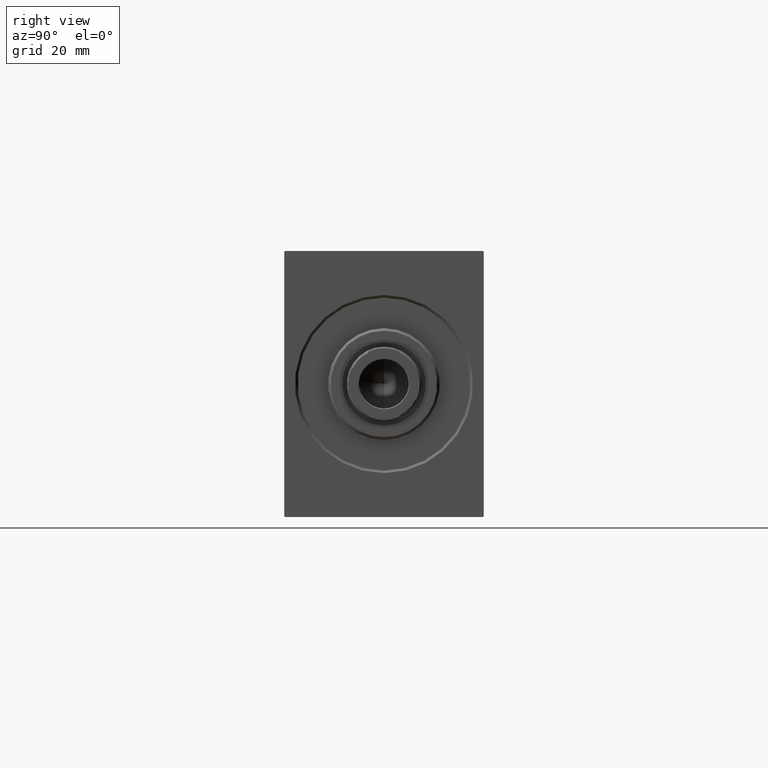
[diagram: clean part render]
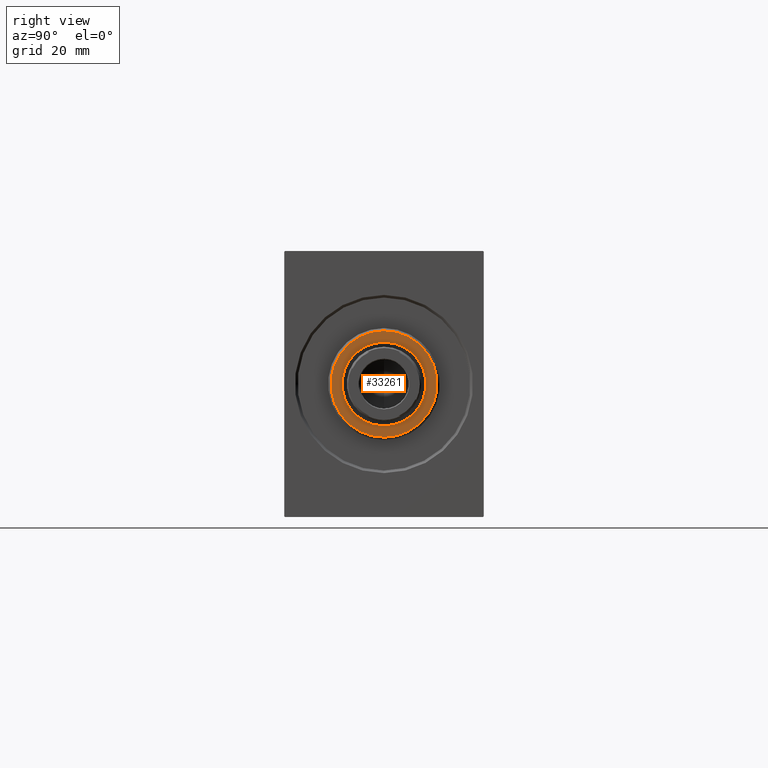
[diagram: same view with one face highlighted and labeled with its STEP entity id]
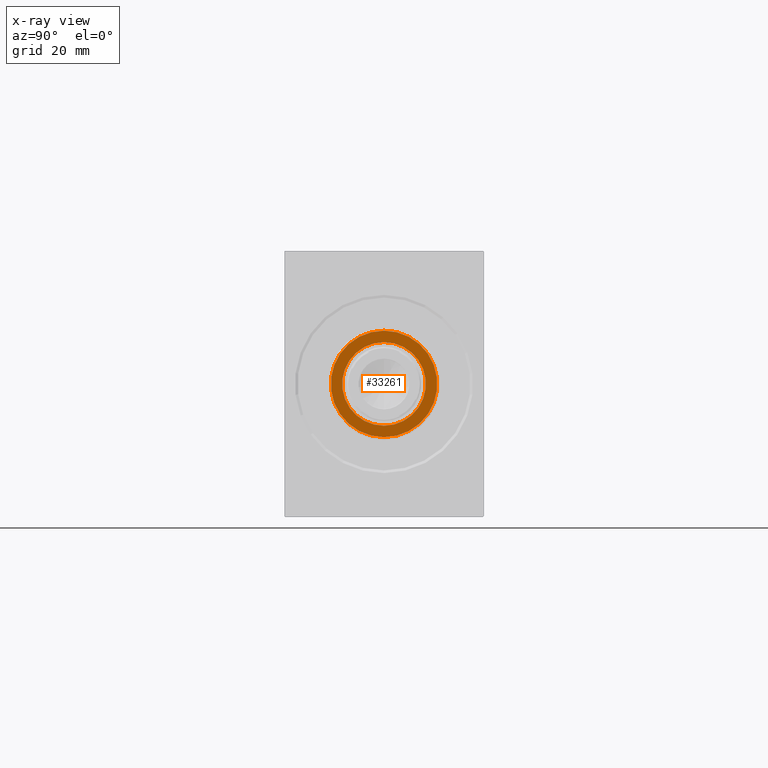
[diagram: x-ray of the same camera — body ghosted, the highlighted face saturated]
A machine part, right view. The second image highlights one B-rep face of the part: STEP entity #33261.
The next image is the same camera in x-ray: the body ghosted, the highlighted face saturated — about 0% of this face is hidden behind the body in this view.
In plain terms, the highlighted planar face has unit normal (1, 0, 0).
Its self-contained STEP definition (entity closure, byte-faithful):
#371 = CARTESIAN_POINT ( 'NONE',  ( 3.000000000000000000, 0.000000000000000000, 0.000000000000000000 ) ) ;
#445 = CARTESIAN_POINT ( 'NONE',  ( 3.000000000000000000, 0.000000000000000000, 0.000000000000000000 ) ) ;
#585 = DIRECTION ( 'NONE',  ( 0.000000000000000000, 0.000000000000000000, -1.000000000000000000 ) ) ;
#808 = CIRCLE ( 'NONE', #17431, 20.00000000000001776 ) ;
#1731 = CIRCLE ( 'NONE', #23149, 20.00000000000001776 ) ;
#4028 = CARTESIAN_POINT ( 'NONE',  ( 3.000000000000000000, 0.000000000000000000, 15.75000000000000000 ) ) ;
#4500 = DIRECTION ( 'NONE',  ( -1.000000000000000000, 0.000000000000000000, -0.000000000000000000 ) ) ;
#4766 = ORIENTED_EDGE ( 'NONE', *, *, #15790, .T. ) ;
#6123 = CARTESIAN_POINT ( 'NONE',  ( 3.000000000000000000, 0.000000000000000000, 0.000000000000000000 ) ) ;
#7647 = CARTESIAN_POINT ( 'NONE',  ( 3.000000000000000000, 0.000000000000000000, 0.000000000000000000 ) ) ;
#8102 = ORIENTED_EDGE ( 'NONE', *, *, #24208, .T. ) ;
#8768 = VERTEX_POINT ( 'NONE', #4028 ) ;
#12156 = CARTESIAN_POINT ( 'NONE',  ( 3.000000000000000000, 1.928818708657080950E-15, -15.75000000000000000 ) ) ;
#12852 = DIRECTION ( 'NONE',  ( 1.000000000000000000, -0.000000000000000000, 0.000000000000000000 ) ) ;
#15790 = EDGE_CURVE ( 'NONE', #25980, #8768, #40073, .T. ) ;
#17213 = AXIS2_PLACEMENT_3D ( 'NONE', #371, #4500, #585 ) ;
#17431 = AXIS2_PLACEMENT_3D ( 'NONE', #22024, #38336, #18579 ) ;
#18579 = DIRECTION ( 'NONE',  ( 0.000000000000000000, 0.000000000000000000, -1.000000000000000000 ) ) ;
#19089 = VERTEX_POINT ( 'NONE', #42363 ) ;
#20170 = FACE_BOUND ( 'NONE', #22388, .T. ) ;
#20286 = AXIS2_PLACEMENT_3D ( 'NONE', #445, #33409, #29933 ) ;
#22024 = CARTESIAN_POINT ( 'NONE',  ( 3.000000000000000000, 0.000000000000000000, 0.000000000000000000 ) ) ;
#22388 = EDGE_LOOP ( 'NONE', ( #37720, #4766 ) ) ;
#23149 = AXIS2_PLACEMENT_3D ( 'NONE', #6123, #12852, #38884 ) ;
#23252 = EDGE_CURVE ( 'NONE', #8768, #25980, #38886, .T. ) ;
#24208 = EDGE_CURVE ( 'NONE', #19089, #33745, #808, .T. ) ;
#25643 = ORIENTED_EDGE ( 'NONE', *, *, #38655, .T. ) ;
#25980 = VERTEX_POINT ( 'NONE', #12156 ) ;
#26308 = CARTESIAN_POINT ( 'NONE',  ( 3.000000000000000000, 2.510525938252075270E-15, -20.00000000000001776 ) ) ;
#26684 = FACE_OUTER_BOUND ( 'NONE', #35085, .T. ) ;
#28216 = DIRECTION ( 'NONE',  ( 0.000000000000000000, 0.000000000000000000, -1.000000000000000000 ) ) ;
#29933 = DIRECTION ( 'NONE',  ( 0.000000000000000000, 0.000000000000000000, -1.000000000000000000 ) ) ;
#33261 = ADVANCED_FACE ( 'NONE', ( #26684, #20170 ), #39714, .T. ) ;
#33409 = DIRECTION ( 'NONE',  ( 1.000000000000000000, -0.000000000000000000, 0.000000000000000000 ) ) ;
#33745 = VERTEX_POINT ( 'NONE', #26308 ) ;
#34732 = DIRECTION ( 'NONE',  ( -1.000000000000000000, 0.000000000000000000, -0.000000000000000000 ) ) ;
#35085 = EDGE_LOOP ( 'NONE', ( #8102, #25643 ) ) ;
#37720 = ORIENTED_EDGE ( 'NONE', *, *, #23252, .T. ) ;
#38336 = DIRECTION ( 'NONE',  ( 1.000000000000000000, -0.000000000000000000, 0.000000000000000000 ) ) ;
#38655 = EDGE_CURVE ( 'NONE', #33745, #19089, #1731, .T. ) ;
#38884 = DIRECTION ( 'NONE',  ( 0.000000000000000000, 0.000000000000000000, -1.000000000000000000 ) ) ;
#38886 = CIRCLE ( 'NONE', #40968, 15.75000000000000000 ) ;
#39714 = PLANE ( 'NONE',  #20286 ) ;
#40073 = CIRCLE ( 'NONE', #17213, 15.75000000000000000 ) ;
#40968 = AXIS2_PLACEMENT_3D ( 'NONE', #7647, #34732, #28216 ) ;
#42363 = CARTESIAN_POINT ( 'NONE',  ( 3.000000000000000000, 0.000000000000000000, 20.00000000000001776 ) ) ;